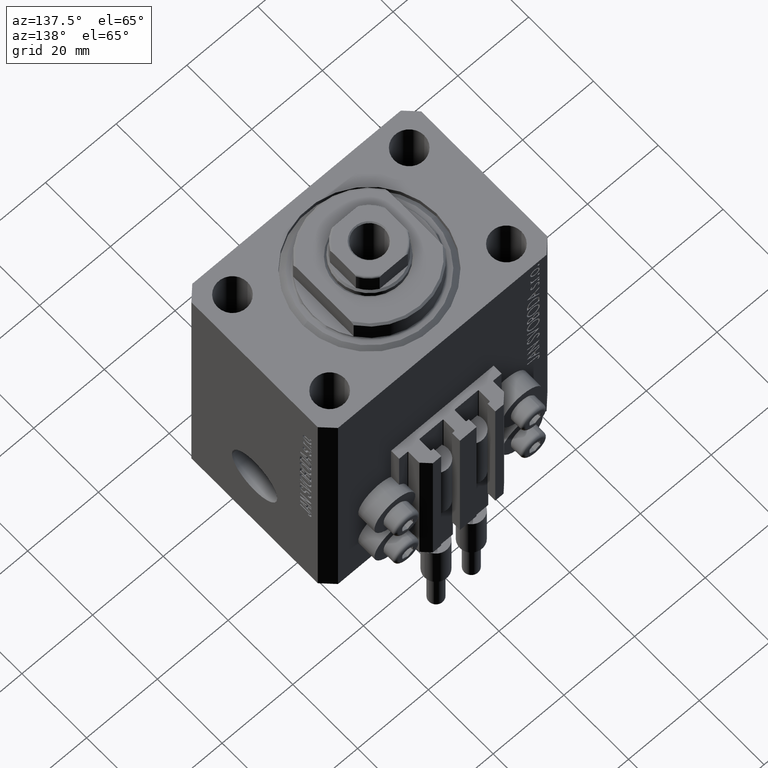
[diagram: clean part render]
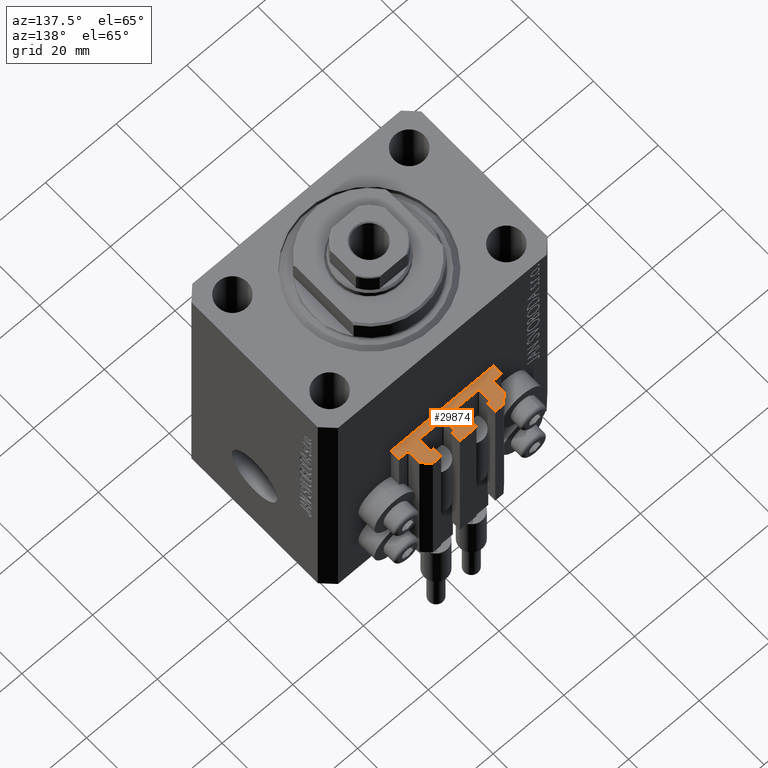
[diagram: same view with one face highlighted and labeled with its STEP entity id]
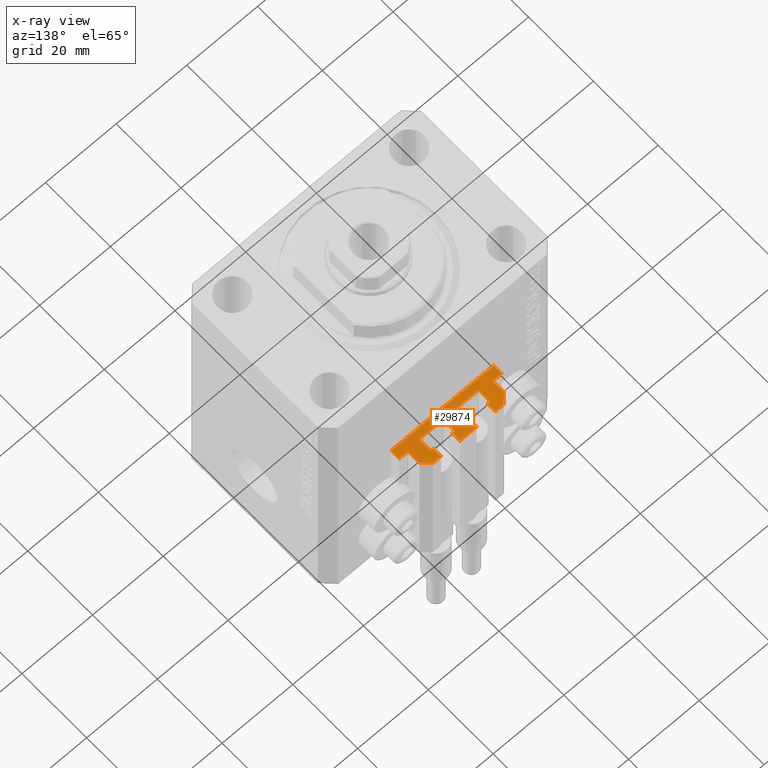
[diagram: x-ray of the same camera — body ghosted, the highlighted face saturated]
A machine part, auxiliary view. The second image highlights one B-rep face of the part: STEP entity #29874.
The next image is the same camera in x-ray: the body ghosted, the highlighted face saturated — about 0% of this face is hidden behind the body in this view.
In plain terms, the highlighted planar face has unit normal (0, 0, 1).
Its self-contained STEP definition (entity closure, byte-faithful):
#231 = VERTEX_POINT ( 'NONE', #15953 ) ;
#481 = AXIS2_PLACEMENT_3D ( 'NONE', #36237, #21360, #32839 ) ;
#493 = CARTESIAN_POINT ( 'NONE',  ( 12.20000000000000284, 24.99999999999950617, -33.00000000000000000 ) ) ;
#634 = AXIS2_PLACEMENT_3D ( 'NONE', #6390, #47151, #32240 ) ;
#725 = VERTEX_POINT ( 'NONE', #10509 ) ;
#1052 = VERTEX_POINT ( 'NONE', #36303 ) ;
#1072 = EDGE_CURVE ( 'NONE', #5445, #41112, #43393, .T. ) ;
#1209 = VECTOR ( 'NONE', #34914, 1000.000000000000000 ) ;
#1239 = AXIS2_PLACEMENT_3D ( 'NONE', #34898, #24158, #5598 ) ;
#1240 = VERTEX_POINT ( 'NONE', #24295 ) ;
#1438 = AXIS2_PLACEMENT_3D ( 'NONE', #26790, #27026, #4109 ) ;
#1455 = VECTOR ( 'NONE', #25560, 1000.000000000000000 ) ;
#1546 = EDGE_CURVE ( 'NONE', #44431, #33382, #30543, .T. ) ;
#1742 = ORIENTED_EDGE ( 'NONE', *, *, #10356, .F. ) ;
#1897 = VERTEX_POINT ( 'NONE', #25151 ) ;
#2161 = EDGE_CURVE ( 'NONE', #41534, #29839, #30672, .T. ) ;
#2314 = EDGE_CURVE ( 'NONE', #21234, #6834, #40834, .T. ) ;
#2324 = ORIENTED_EDGE ( 'NONE', *, *, #45225, .F. ) ;
#2499 = DIRECTION ( 'NONE',  ( -0.7071067811865472397, -0.7071067811865479058, 0.000000000000000000 ) ) ;
#2592 = VECTOR ( 'NONE', #47056, 1000.000000000000000 ) ;
#2840 = EDGE_CURVE ( 'NONE', #31721, #42323, #29708, .T. ) ;
#3240 = VERTEX_POINT ( 'NONE', #24958 ) ;
#3657 = EDGE_CURVE ( 'NONE', #44431, #11515, #42441, .T. ) ;
#3741 = CIRCLE ( 'NONE', #634, 0.1999999999999987899 ) ;
#3814 = LINE ( 'NONE', #40176, #11508 ) ;
#3817 = DIRECTION ( 'NONE',  ( 0.000000000000000000, 0.000000000000000000, 1.000000000000000000 ) ) ;
#4068 = EDGE_CURVE ( 'NONE', #32209, #33382, #25453, .T. ) ;
#4109 = DIRECTION ( 'NONE',  ( 1.000000000000000000, 0.000000000000000000, 0.000000000000000000 ) ) ;
#4289 = CARTESIAN_POINT ( 'NONE',  ( 12.00000000000000178, 28.49999999999950973, -33.00000000000000000 ) ) ;
#4487 = DIRECTION ( 'NONE',  ( 1.000000000000000000, 0.000000000000000000, 0.000000000000000000 ) ) ;
#4540 = CARTESIAN_POINT ( 'NONE',  ( 7.649999999999995914, 28.09999999999950404, -33.00000000000000000 ) ) ;
#4575 = CIRCLE ( 'NONE', #43571, 0.2000000000000005107 ) ;
#4853 = ORIENTED_EDGE ( 'NONE', *, *, #8436, .F. ) ;
#5055 = EDGE_CURVE ( 'NONE', #1240, #30195, #29858, .T. ) ;
#5445 = VERTEX_POINT ( 'NONE', #39206 ) ;
#5472 = VERTEX_POINT ( 'NONE', #37012 ) ;
#5598 = DIRECTION ( 'NONE',  ( 1.000000000000000000, 0.000000000000000000, 0.000000000000000000 ) ) ;
#5959 = DIRECTION ( 'NONE',  ( 0.000000000000000000, -1.000000000000000000, 0.000000000000000000 ) ) ;
#6017 = CARTESIAN_POINT ( 'NONE',  ( 8.200000000000001066, 24.49999999999949196, -33.00000000000000000 ) ) ;
#6390 = CARTESIAN_POINT ( 'NONE',  ( 8.200000000000001066, 24.69999999999949125, -33.00000000000000000 ) ) ;
#6834 = VERTEX_POINT ( 'NONE', #47398 ) ;
#6884 = DIRECTION ( 'NONE',  ( 0.000000000000000000, 0.000000000000000000, 1.000000000000000000 ) ) ;
#7030 = ORIENTED_EDGE ( 'NONE', *, *, #24288, .T. ) ;
#7096 = ORIENTED_EDGE ( 'NONE', *, *, #43139, .T. ) ;
#7598 = AXIS2_PLACEMENT_3D ( 'NONE', #15832, #30703, #34378 ) ;
#7970 = CARTESIAN_POINT ( 'NONE',  ( -1.600000000000003197, 27.89999999999950120, -33.00000000000000000 ) ) ;
#8116 = ORIENTED_EDGE ( 'NONE', *, *, #44608, .T. ) ;
#8169 = ORIENTED_EDGE ( 'NONE', *, *, #26187, .T. ) ;
#8307 = DIRECTION ( 'NONE',  ( 0.000000000000000000, -1.000000000000000000, 0.000000000000000000 ) ) ;
#8338 = CARTESIAN_POINT ( 'NONE',  ( -1.800000000000000933, 24.49999999999949551, -33.00000000000000000 ) ) ;
#8407 = VECTOR ( 'NONE', #36983, 1000.000000000000000 ) ;
#8436 = EDGE_CURVE ( 'NONE', #725, #28972, #30968, .T. ) ;
#8515 = ORIENTED_EDGE ( 'NONE', *, *, #1546, .T. ) ;
#8559 = LINE ( 'NONE', #37617, #33550 ) ;
#8637 = CARTESIAN_POINT ( 'NONE',  ( 8.200000000000001066, 24.49999999999949196, -33.00000000000000000 ) ) ;
#8878 = EDGE_CURVE ( 'NONE', #31721, #29839, #20106, .T. ) ;
#9165 = ORIENTED_EDGE ( 'NONE', *, *, #40705, .T. ) ;
#10064 = DIRECTION ( 'NONE',  ( 0.000000000000000000, 1.000000000000000000, 0.000000000000000000 ) ) ;
#10356 = EDGE_CURVE ( 'NONE', #1052, #1897, #31826, .T. ) ;
#10509 = CARTESIAN_POINT ( 'NONE',  ( 12.00000000000000355, 25.19999999999951257, -33.00000000000000000 ) ) ;
#10510 = CARTESIAN_POINT ( 'NONE',  ( -1.800000000000000933, 24.69999999999949480, -33.00000000000000000 ) ) ;
#10541 = CARTESIAN_POINT ( 'NONE',  ( 7.649999999999995026, 30.49999999999949196, -33.00000000000000000 ) ) ;
#10937 = VECTOR ( 'NONE', #19359, 1000.000000000000000 ) ;
#11093 = CARTESIAN_POINT ( 'NONE',  ( 14.49999999999999645, 22.49999999999949907, -33.00000000000000000 ) ) ;
#11215 = ORIENTED_EDGE ( 'NONE', *, *, #2840, .T. ) ;
#11234 = ORIENTED_EDGE ( 'NONE', *, *, #22820, .T. ) ;
#11361 = LINE ( 'NONE', #40418, #20919 ) ;
#11508 = VECTOR ( 'NONE', #29435, 1000.000000000000000 ) ;
#11515 = VERTEX_POINT ( 'NONE', #26747 ) ;
#11532 = VERTEX_POINT ( 'NONE', #12806 ) ;
#11778 = ORIENTED_EDGE ( 'NONE', *, *, #8878, .F. ) ;
#11838 = VERTEX_POINT ( 'NONE', #11093 ) ;
#11855 = DIRECTION ( 'NONE',  ( 1.000000000000000000, 0.000000000000000000, 0.000000000000000000 ) ) ;
#11867 = DIRECTION ( 'NONE',  ( 1.000000000000000000, 0.000000000000000000, 0.000000000000000000 ) ) ;
#11972 = CARTESIAN_POINT ( 'NONE',  ( -2.350000000000003197, 30.49999999999949907, -33.00000000000000000 ) ) ;
#12009 = VERTEX_POINT ( 'NONE', #35189 ) ;
#12090 = LINE ( 'NONE', #19423, #46725 ) ;
#12220 = VERTEX_POINT ( 'NONE', #42884 ) ;
#12396 = VECTOR ( 'NONE', #29310, 1000.000000000000000 ) ;
#12485 = DIRECTION ( 'NONE',  ( -1.000000000000000000, 0.000000000000000000, 0.000000000000000000 ) ) ;
#12733 = EDGE_CURVE ( 'NONE', #36151, #5472, #3741, .T. ) ;
#12758 = EDGE_CURVE ( 'NONE', #725, #3240, #36902, .T. ) ;
#12806 = CARTESIAN_POINT ( 'NONE',  ( 14.49999999999999822, 24.99999999999950617, -33.00000000000000000 ) ) ;
#13062 = CARTESIAN_POINT ( 'NONE',  ( 1.800000000000000933, 28.09999999999949694, -33.00000000000000000 ) ) ;
#13092 = VECTOR ( 'NONE', #10064, 1000.000000000000000 ) ;
#13435 = EDGE_CURVE ( 'NONE', #45627, #6834, #32305, .T. ) ;
#13519 = LINE ( 'NONE', #33295, #10937 ) ;
#13520 = VECTOR ( 'NONE', #30196, 1000.000000000000000 ) ;
#13617 = CARTESIAN_POINT ( 'NONE',  ( 1.599999999999999645, 24.69999999999949480, -33.00000000000000000 ) ) ;
#13894 = ORIENTED_EDGE ( 'NONE', *, *, #14555, .F. ) ;
#13921 = ORIENTED_EDGE ( 'NONE', *, *, #19887, .F. ) ;
#14036 = DIRECTION ( 'NONE',  ( 1.000000000000000000, 0.000000000000000000, 0.000000000000000000 ) ) ;
#14192 = LINE ( 'NONE', #29078, #12396 ) ;
#14282 = ORIENTED_EDGE ( 'NONE', *, *, #2314, .F. ) ;
#14385 = VECTOR ( 'NONE', #30883, 1000.000000000000000 ) ;
#14555 = EDGE_CURVE ( 'NONE', #41534, #30153, #23398, .T. ) ;
#14807 = DIRECTION ( 'NONE',  ( -0.7071067811865507924, 0.7071067811865441310, 0.000000000000000000 ) ) ;
#14872 = VERTEX_POINT ( 'NONE', #33950 ) ;
#15832 = CARTESIAN_POINT ( 'NONE',  ( 12.20000000000000284, 25.19999999999950546, -33.00000000000000000 ) ) ;
#15866 = ORIENTED_EDGE ( 'NONE', *, *, #12733, .F. ) ;
#15953 = CARTESIAN_POINT ( 'NONE',  ( 8.400000000000000355, 27.89999999999950475, -33.00000000000000000 ) ) ;
#16187 = CARTESIAN_POINT ( 'NONE',  ( 1.800000000000000933, 24.69999999999949480, -33.00000000000000000 ) ) ;
#16201 = VERTEX_POINT ( 'NONE', #31142 ) ;
#16464 = LINE ( 'NONE', #31337, #22378 ) ;
#16879 = LINE ( 'NONE', #47145, #22613 ) ;
#17430 = CARTESIAN_POINT ( 'NONE',  ( -12.20000000000000107, 24.99999999999948841, -33.00000000000000000 ) ) ;
#17616 = FACE_OUTER_BOUND ( 'NONE', #44076, .T. ) ;
#17669 = VECTOR ( 'NONE', #2499, 999.9999999999998863 ) ;
#17767 = CARTESIAN_POINT ( 'NONE',  ( 14.49999999999999645, 22.49999999999949907, -33.00000000000000000 ) ) ;
#18176 = LINE ( 'NONE', #25496, #38984 ) ;
#18391 = ORIENTED_EDGE ( 'NONE', *, *, #36350, .T. ) ;
#18544 = ORIENTED_EDGE ( 'NONE', *, *, #12758, .T. ) ;
#19071 = AXIS2_PLACEMENT_3D ( 'NONE', #10510, #24640, #25387 ) ;
#19224 = AXIS2_PLACEMENT_3D ( 'NONE', #25924, #6884, #40810 ) ;
#19359 = DIRECTION ( 'NONE',  ( 0.000000000000000000, 1.000000000000000000, 0.000000000000000000 ) ) ;
#19423 = CARTESIAN_POINT ( 'NONE',  ( -14.50000000000000000, 22.49999999999949907, -33.00000000000000000 ) ) ;
#19494 = VECTOR ( 'NONE', #8307, 1000.000000000000000 ) ;
#19887 = EDGE_CURVE ( 'NONE', #231, #12220, #4575, .T. ) ;
#20106 = CIRCLE ( 'NONE', #35693, 0.1999999999999981515 ) ;
#20384 = ORIENTED_EDGE ( 'NONE', *, *, #22718, .T. ) ;
#20502 = CARTESIAN_POINT ( 'NONE',  ( -12.20000000000000107, 24.99999999999948841, -33.00000000000000000 ) ) ;
#20516 = CARTESIAN_POINT ( 'NONE',  ( 1.800000000000000933, 28.09999999999950049, -33.00000000000000000 ) ) ;
#20667 = CARTESIAN_POINT ( 'NONE',  ( -12.00000000000000000, 28.49999999999948841, -33.00000000000000000 ) ) ;
#20919 = VECTOR ( 'NONE', #25527, 1000.000000000000000 ) ;
#21234 = VERTEX_POINT ( 'NONE', #17430 ) ;
#21294 = CARTESIAN_POINT ( 'NONE',  ( 1.800000000000000933, 27.89999999999950120, -33.00000000000000000 ) ) ;
#21360 = DIRECTION ( 'NONE',  ( 0.000000000000000000, 0.000000000000000000, 1.000000000000000000 ) ) ;
#21590 = CARTESIAN_POINT ( 'NONE',  ( -12.00000000000000000, 28.49999999999948841, -33.00000000000000000 ) ) ;
#21841 = EDGE_CURVE ( 'NONE', #3240, #45800, #22603, .T. ) ;
#22302 = CIRCLE ( 'NONE', #1239, 0.1999999999999979294 ) ;
#22304 = CARTESIAN_POINT ( 'NONE',  ( 7.649999999999995914, 28.09999999999950404, -33.00000000000000000 ) ) ;
#22378 = VECTOR ( 'NONE', #38424, 1000.000000000000000 ) ;
#22384 = CARTESIAN_POINT ( 'NONE',  ( -7.650000000000000355, 30.49999999999948486, -33.00000000000000000 ) ) ;
#22399 = CARTESIAN_POINT ( 'NONE',  ( 1.600000000000000533, 24.69999999999949480, -33.00000000000000000 ) ) ;
#22448 = VECTOR ( 'NONE', #36065, 1000.000000000000000 ) ;
#22454 = ORIENTED_EDGE ( 'NONE', *, *, #44078, .T. ) ;
#22457 = EDGE_CURVE ( 'NONE', #14872, #11838, #12090, .T. ) ;
#22490 = CARTESIAN_POINT ( 'NONE',  ( -8.199999999999999289, 24.49999999999949551, -33.00000000000000000 ) ) ;
#22603 = LINE ( 'NONE', #4289, #38157 ) ;
#22613 = VECTOR ( 'NONE', #27630, 1000.000000000000000 ) ;
#22718 = EDGE_CURVE ( 'NONE', #1052, #1240, #18176, .T. ) ;
#22820 = EDGE_CURVE ( 'NONE', #42323, #45503, #13519, .T. ) ;
#22828 = ORIENTED_EDGE ( 'NONE', *, *, #21841, .T. ) ;
#23025 = DIRECTION ( 'NONE',  ( 0.000000000000000000, 0.000000000000000000, 1.000000000000000000 ) ) ;
#23398 = CIRCLE ( 'NONE', #39738, 0.2000000000000016209 ) ;
#23800 = DIRECTION ( 'NONE',  ( 1.000000000000000000, 6.308085367188338373E-15, 0.000000000000000000 ) ) ;
#23900 = VECTOR ( 'NONE', #36947, 1000.000000000000000 ) ;
#24158 = DIRECTION ( 'NONE',  ( 0.000000000000000000, 0.000000000000000000, 1.000000000000000000 ) ) ;
#24288 = EDGE_CURVE ( 'NONE', #231, #5472, #44558, .T. ) ;
#24295 = CARTESIAN_POINT ( 'NONE',  ( -7.650000000000000355, 28.09999999999948628, -33.00000000000000000 ) ) ;
#24490 = ORIENTED_EDGE ( 'NONE', *, *, #34986, .T. ) ;
#24640 = DIRECTION ( 'NONE',  ( 0.000000000000000000, 0.000000000000000000, 1.000000000000000000 ) ) ;
#24932 = EDGE_CURVE ( 'NONE', #11838, #11532, #29484, .T. ) ;
#24958 = CARTESIAN_POINT ( 'NONE',  ( 12.00000000000000178, 28.49999999999950973, -33.00000000000000000 ) ) ;
#25151 = CARTESIAN_POINT ( 'NONE',  ( -8.399999999999996803, 27.89999999999948699, -33.00000000000000000 ) ) ;
#25379 = LINE ( 'NONE', #47342, #27692 ) ;
#25387 = DIRECTION ( 'NONE',  ( 1.000000000000000000, 0.000000000000000000, 0.000000000000000000 ) ) ;
#25404 = ORIENTED_EDGE ( 'NONE', *, *, #24932, .T. ) ;
#25434 = PLANE ( 'NONE',  #19224 ) ;
#25453 = CIRCLE ( 'NONE', #481, 0.1999999999999987899 ) ;
#25496 = CARTESIAN_POINT ( 'NONE',  ( -8.199999999999997513, 28.09999999999948628, -33.00000000000000000 ) ) ;
#25527 = DIRECTION ( 'NONE',  ( 0.000000000000000000, -1.000000000000000000, 0.000000000000000000 ) ) ;
#25560 = DIRECTION ( 'NONE',  ( -1.000000000000000000, 0.000000000000000000, 0.000000000000000000 ) ) ;
#25924 = CARTESIAN_POINT ( 'NONE',  ( 12.20000000000000284, 25.19999999999950546, -33.00000000000000000 ) ) ;
#26187 = EDGE_CURVE ( 'NONE', #32209, #1897, #16464, .T. ) ;
#26747 = CARTESIAN_POINT ( 'NONE',  ( -1.600000000000000755, 24.69999999999949480, -33.00000000000000000 ) ) ;
#26790 = CARTESIAN_POINT ( 'NONE',  ( -8.199999999999997513, 27.89999999999948699, -33.00000000000000000 ) ) ;
#26896 = ORIENTED_EDGE ( 'NONE', *, *, #4068, .F. ) ;
#27026 = DIRECTION ( 'NONE',  ( 0.000000000000000000, 0.000000000000000000, 1.000000000000000000 ) ) ;
#27425 = EDGE_CURVE ( 'NONE', #11532, #28972, #3814, .T. ) ;
#27540 = VECTOR ( 'NONE', #12485, 1000.000000000000000 ) ;
#27630 = DIRECTION ( 'NONE',  ( -1.000000000000000000, -1.476360405086644852E-15, 0.000000000000000000 ) ) ;
#27692 = VECTOR ( 'NONE', #43436, 1000.000000000000000 ) ;
#28605 = ORIENTED_EDGE ( 'NONE', *, *, #42368, .T. ) ;
#28606 = DIRECTION ( 'NONE',  ( 0.000000000000000000, 0.000000000000000000, 1.000000000000000000 ) ) ;
#28955 = DIRECTION ( 'NONE',  ( 0.000000000000000000, 0.000000000000000000, 1.000000000000000000 ) ) ;
#28972 = VERTEX_POINT ( 'NONE', #493 ) ;
#29078 = CARTESIAN_POINT ( 'NONE',  ( -1.600000000000000533, 27.89999999999950120, -33.00000000000000000 ) ) ;
#29154 = EDGE_CURVE ( 'NONE', #33685, #41112, #22302, .T. ) ;
#29310 = DIRECTION ( 'NONE',  ( -6.776263578034385456E-17, -1.000000000000000000, 0.000000000000000000 ) ) ;
#29435 = DIRECTION ( 'NONE',  ( -1.000000000000000000, 0.000000000000000000, 0.000000000000000000 ) ) ;
#29484 = LINE ( 'NONE', #17767, #22448 ) ;
#29491 = VECTOR ( 'NONE', #5959, 1000.000000000000000 ) ;
#29622 = CARTESIAN_POINT ( 'NONE',  ( -7.650000000000000355, 28.09999999999948628, -33.00000000000000000 ) ) ;
#29708 = LINE ( 'NONE', #13062, #14385 ) ;
#29808 = DIRECTION ( 'NONE',  ( 3.614007241618365534E-16, -1.000000000000000000, 0.000000000000000000 ) ) ;
#29825 = CARTESIAN_POINT ( 'NONE',  ( 7.649999999999995026, 30.49999999999949196, -33.00000000000000000 ) ) ;
#29839 = VERTEX_POINT ( 'NONE', #36901 ) ;
#29858 = LINE ( 'NONE', #29622, #23900 ) ;
#29874 = ADVANCED_FACE ( 'NONE', ( #17616 ), #25434, .T. ) ;
#30153 = VERTEX_POINT ( 'NONE', #41884 ) ;
#30195 = VERTEX_POINT ( 'NONE', #22384 ) ;
#30196 = DIRECTION ( 'NONE',  ( 0.000000000000000000, 1.000000000000000000, 0.000000000000000000 ) ) ;
#30382 = ORIENTED_EDGE ( 'NONE', *, *, #41161, .T. ) ;
#30458 = ORIENTED_EDGE ( 'NONE', *, *, #27425, .T. ) ;
#30543 = LINE ( 'NONE', #8338, #27540 ) ;
#30672 = LINE ( 'NONE', #22399, #13520 ) ;
#30703 = DIRECTION ( 'NONE',  ( 0.000000000000000000, 0.000000000000000000, 1.000000000000000000 ) ) ;
#30883 = DIRECTION ( 'NONE',  ( 1.000000000000000000, 6.308085367188405427E-15, 0.000000000000000000 ) ) ;
#30968 = CIRCLE ( 'NONE', #7598, 0.1999999999999987899 ) ;
#31142 = CARTESIAN_POINT ( 'NONE',  ( -14.50000000000000000, 24.99999999999949196, -33.00000000000000000 ) ) ;
#31337 = CARTESIAN_POINT ( 'NONE',  ( -8.400000000000000355, 24.69999999999949480, -33.00000000000000000 ) ) ;
#31451 = ORIENTED_EDGE ( 'NONE', *, *, #44387, .T. ) ;
#31721 = VERTEX_POINT ( 'NONE', #20516 ) ;
#31826 = CIRCLE ( 'NONE', #1438, 0.1999999999999987899 ) ;
#32091 = CARTESIAN_POINT ( 'NONE',  ( -1.800000000000000933, 28.09999999999949694, -33.00000000000000000 ) ) ;
#32123 = CARTESIAN_POINT ( 'NONE',  ( -1.800000000000000933, 24.49999999999949551, -33.00000000000000000 ) ) ;
#32209 = VERTEX_POINT ( 'NONE', #42091 ) ;
#32240 = DIRECTION ( 'NONE',  ( 1.000000000000000000, 0.000000000000000000, 0.000000000000000000 ) ) ;
#32305 = LINE ( 'NONE', #21590, #29491 ) ;
#32839 = DIRECTION ( 'NONE',  ( 1.000000000000000000, 0.000000000000000000, 0.000000000000000000 ) ) ;
#32982 = LINE ( 'NONE', #10541, #39706 ) ;
#33295 = CARTESIAN_POINT ( 'NONE',  ( 2.349999999999999645, 28.09999999999950049, -33.00000000000000000 ) ) ;
#33382 = VERTEX_POINT ( 'NONE', #22490 ) ;
#33550 = VECTOR ( 'NONE', #45651, 1000.000000000000000 ) ;
#33685 = VERTEX_POINT ( 'NONE', #7970 ) ;
#33950 = CARTESIAN_POINT ( 'NONE',  ( -14.50000000000000000, 22.49999999999949907, -33.00000000000000000 ) ) ;
#34071 = VERTEX_POINT ( 'NONE', #29825 ) ;
#34378 = DIRECTION ( 'NONE',  ( 1.000000000000000000, 0.000000000000000000, 0.000000000000000000 ) ) ;
#34484 = EDGE_CURVE ( 'NONE', #30195, #12009, #25379, .T. ) ;
#34898 = CARTESIAN_POINT ( 'NONE',  ( -1.800000000000000933, 27.89999999999950120, -33.00000000000000000 ) ) ;
#34914 = DIRECTION ( 'NONE',  ( -1.000000000000000000, 1.508455196501571429E-15, 0.000000000000000000 ) ) ;
#34986 = EDGE_CURVE ( 'NONE', #12009, #45627, #40335, .T. ) ;
#35189 = CARTESIAN_POINT ( 'NONE',  ( -10.00000000000000000, 30.49999999999948841, -33.00000000000000000 ) ) ;
#35693 = AXIS2_PLACEMENT_3D ( 'NONE', #21294, #28606, #43513 ) ;
#35813 = CARTESIAN_POINT ( 'NONE',  ( -2.350000000000003197, 28.09999999999950049, -33.00000000000000000 ) ) ;
#36065 = DIRECTION ( 'NONE',  ( 6.938893903907212600E-16, 1.000000000000000000, 0.000000000000000000 ) ) ;
#36151 = VERTEX_POINT ( 'NONE', #8637 ) ;
#36237 = CARTESIAN_POINT ( 'NONE',  ( -8.199999999999999289, 24.69999999999949480, -33.00000000000000000 ) ) ;
#36303 = CARTESIAN_POINT ( 'NONE',  ( -8.199999999999997513, 28.09999999999948628, -33.00000000000000000 ) ) ;
#36350 = EDGE_CURVE ( 'NONE', #21234, #16201, #39288, .T. ) ;
#36408 = CARTESIAN_POINT ( 'NONE',  ( 12.00000000000000178, 25.19999999999951257, -33.00000000000000000 ) ) ;
#36560 = ORIENTED_EDGE ( 'NONE', *, *, #5055, .T. ) ;
#36762 = DIRECTION ( 'NONE',  ( 1.000000000000000000, 0.000000000000000000, 0.000000000000000000 ) ) ;
#36901 = CARTESIAN_POINT ( 'NONE',  ( 1.600000000000000533, 27.89999999999950120, -33.00000000000000000 ) ) ;
#36902 = LINE ( 'NONE', #36408, #13092 ) ;
#36947 = DIRECTION ( 'NONE',  ( 0.000000000000000000, 1.000000000000000000, 0.000000000000000000 ) ) ;
#36983 = DIRECTION ( 'NONE',  ( -5.421010862427496532E-16, -1.000000000000000000, 0.000000000000000000 ) ) ;
#37012 = CARTESIAN_POINT ( 'NONE',  ( 8.400000000000000355, 24.69999999999949125, -33.00000000000000000 ) ) ;
#37617 = CARTESIAN_POINT ( 'NONE',  ( -2.350000000000003197, 30.49999999999949907, -33.00000000000000000 ) ) ;
#37792 = CARTESIAN_POINT ( 'NONE',  ( 2.349999999999999645, 30.49999999999949907, -33.00000000000000000 ) ) ;
#37966 = LINE ( 'NONE', #4540, #39735 ) ;
#38157 = VECTOR ( 'NONE', #14807, 1000.000000000000000 ) ;
#38424 = DIRECTION ( 'NONE',  ( 1.084202172485506406E-15, 1.000000000000000000, 0.000000000000000000 ) ) ;
#38984 = VECTOR ( 'NONE', #14036, 1000.000000000000000 ) ;
#39206 = CARTESIAN_POINT ( 'NONE',  ( -2.350000000000003197, 28.09999999999950049, -33.00000000000000000 ) ) ;
#39288 = LINE ( 'NONE', #20502, #1209 ) ;
#39500 = ORIENTED_EDGE ( 'NONE', *, *, #13435, .T. ) ;
#39706 = VECTOR ( 'NONE', #29808, 1000.000000000000000 ) ;
#39735 = VECTOR ( 'NONE', #23800, 1000.000000000000000 ) ;
#39738 = AXIS2_PLACEMENT_3D ( 'NONE', #16187, #23025, #4487 ) ;
#39819 = ORIENTED_EDGE ( 'NONE', *, *, #22457, .T. ) ;
#40096 = VERTEX_POINT ( 'NONE', #22304 ) ;
#40170 = ORIENTED_EDGE ( 'NONE', *, *, #1072, .T. ) ;
#40176 = CARTESIAN_POINT ( 'NONE',  ( 14.49999999999999822, 24.99999999999950617, -33.00000000000000000 ) ) ;
#40301 = CARTESIAN_POINT ( 'NONE',  ( 2.349999999999999645, 28.09999999999950049, -33.00000000000000000 ) ) ;
#40335 = LINE ( 'NONE', #44495, #17669 ) ;
#40418 = CARTESIAN_POINT ( 'NONE',  ( -14.50000000000000000, 24.99999999999949196, -33.00000000000000000 ) ) ;
#40699 = ORIENTED_EDGE ( 'NONE', *, *, #2161, .T. ) ;
#40705 = EDGE_CURVE ( 'NONE', #36151, #30153, #47535, .T. ) ;
#40810 = DIRECTION ( 'NONE',  ( 1.000000000000000000, 0.000000000000000000, -0.000000000000000000 ) ) ;
#40834 = CIRCLE ( 'NONE', #44737, 0.2000000000000005107 ) ;
#41112 = VERTEX_POINT ( 'NONE', #32091 ) ;
#41123 = CARTESIAN_POINT ( 'NONE',  ( 8.400000000000000355, 27.89999999999950475, -33.00000000000000000 ) ) ;
#41161 = EDGE_CURVE ( 'NONE', #16201, #14872, #11361, .T. ) ;
#41367 = VERTEX_POINT ( 'NONE', #46237 ) ;
#41534 = VERTEX_POINT ( 'NONE', #13617 ) ;
#41884 = CARTESIAN_POINT ( 'NONE',  ( 1.800000000000000933, 24.49999999999949196, -33.00000000000000000 ) ) ;
#42091 = CARTESIAN_POINT ( 'NONE',  ( -8.399999999999998579, 24.69999999999949480, -33.00000000000000000 ) ) ;
#42323 = VERTEX_POINT ( 'NONE', #40301 ) ;
#42368 = EDGE_CURVE ( 'NONE', #33685, #11515, #14192, .T. ) ;
#42441 = CIRCLE ( 'NONE', #19071, 0.1999999999999994282 ) ;
#42455 = ORIENTED_EDGE ( 'NONE', *, *, #29154, .F. ) ;
#42884 = CARTESIAN_POINT ( 'NONE',  ( 8.200000000000001066, 28.09999999999950759, -33.00000000000000000 ) ) ;
#43139 = EDGE_CURVE ( 'NONE', #34071, #40096, #32982, .T. ) ;
#43342 = CARTESIAN_POINT ( 'NONE',  ( -12.20000000000000107, 25.19999999999949125, -33.00000000000000000 ) ) ;
#43393 = LINE ( 'NONE', #35813, #2592 ) ;
#43436 = DIRECTION ( 'NONE',  ( -1.000000000000000000, 1.476360405086644852E-15, 0.000000000000000000 ) ) ;
#43513 = DIRECTION ( 'NONE',  ( 1.000000000000000000, 0.000000000000000000, 0.000000000000000000 ) ) ;
#43571 = AXIS2_PLACEMENT_3D ( 'NONE', #45294, #3817, #11855 ) ;
#44076 = EDGE_LOOP ( 'NONE', ( #30382, #39819, #25404, #30458, #4853, #18544, #22828, #22454, #7096, #8116, #13921, #7030, #15866, #9165, #13894, #40699, #11778, #11215, #11234, #2324, #31451, #40170, #42455, #28605, #44678, #8515, #26896, #8169, #1742, #20384, #36560, #45612, #24490, #39500, #14282, #18391 ) ) ;
#44078 = EDGE_CURVE ( 'NONE', #45800, #34071, #16879, .T. ) ;
#44124 = CARTESIAN_POINT ( 'NONE',  ( 9.999999999999994671, 30.49999999999949551, -33.00000000000000000 ) ) ;
#44387 = EDGE_CURVE ( 'NONE', #41367, #5445, #45412, .T. ) ;
#44431 = VERTEX_POINT ( 'NONE', #32123 ) ;
#44495 = CARTESIAN_POINT ( 'NONE',  ( -10.00000000000000000, 30.49999999999948841, -33.00000000000000000 ) ) ;
#44558 = LINE ( 'NONE', #41123, #8407 ) ;
#44608 = EDGE_CURVE ( 'NONE', #40096, #12220, #37966, .T. ) ;
#44678 = ORIENTED_EDGE ( 'NONE', *, *, #3657, .F. ) ;
#44737 = AXIS2_PLACEMENT_3D ( 'NONE', #43342, #28955, #36762 ) ;
#45225 = EDGE_CURVE ( 'NONE', #41367, #45503, #8559, .T. ) ;
#45294 = CARTESIAN_POINT ( 'NONE',  ( 8.200000000000001066, 27.89999999999950475, -33.00000000000000000 ) ) ;
#45412 = LINE ( 'NONE', #11972, #19494 ) ;
#45503 = VERTEX_POINT ( 'NONE', #37792 ) ;
#45612 = ORIENTED_EDGE ( 'NONE', *, *, #34484, .T. ) ;
#45627 = VERTEX_POINT ( 'NONE', #20667 ) ;
#45651 = DIRECTION ( 'NONE',  ( 1.000000000000000000, 0.000000000000000000, 0.000000000000000000 ) ) ;
#45800 = VERTEX_POINT ( 'NONE', #44124 ) ;
#46237 = CARTESIAN_POINT ( 'NONE',  ( -2.350000000000003197, 30.49999999999949907, -33.00000000000000000 ) ) ;
#46725 = VECTOR ( 'NONE', #11867, 1000.000000000000000 ) ;
#47056 = DIRECTION ( 'NONE',  ( 1.000000000000000000, -6.308085367188365195E-15, 0.000000000000000000 ) ) ;
#47145 = CARTESIAN_POINT ( 'NONE',  ( 9.999999999999994671, 30.49999999999949551, -33.00000000000000000 ) ) ;
#47151 = DIRECTION ( 'NONE',  ( 0.000000000000000000, 0.000000000000000000, 1.000000000000000000 ) ) ;
#47342 = CARTESIAN_POINT ( 'NONE',  ( -7.650000000000000355, 30.49999999999948486, -33.00000000000000000 ) ) ;
#47398 = CARTESIAN_POINT ( 'NONE',  ( -12.00000000000000000, 25.19999999999949125, -33.00000000000000000 ) ) ;
#47535 = LINE ( 'NONE', #6017, #1455 ) ;